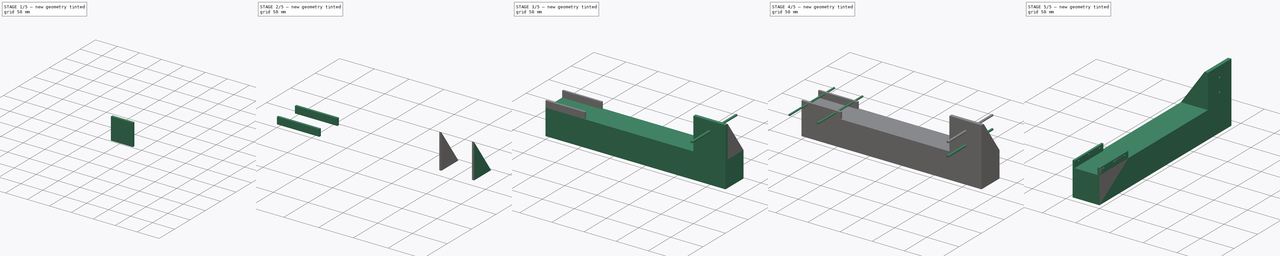
[diagram: build sequence overview — one tinted view per stage of 5, left to right]
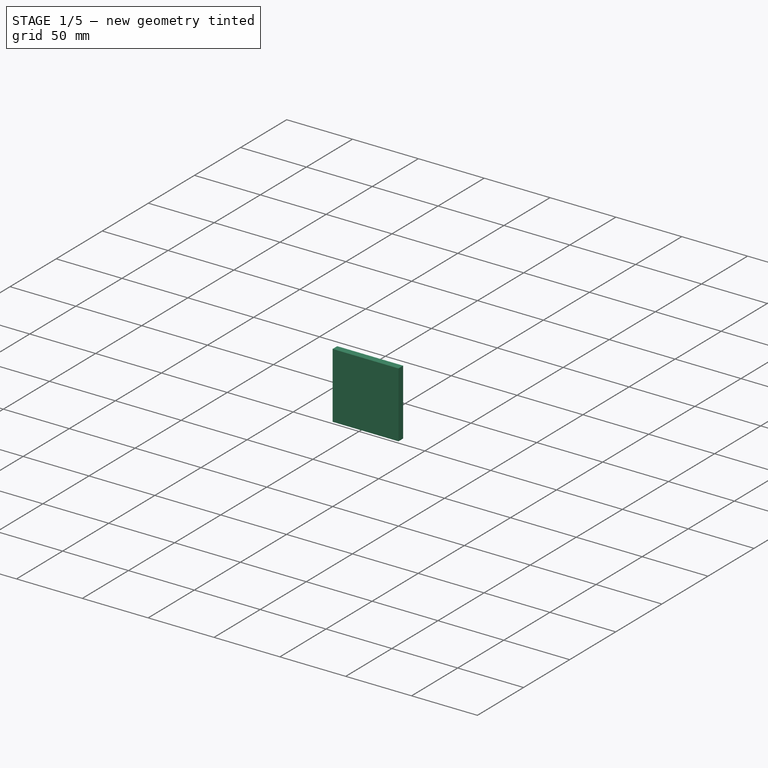
[diagram: stage 1 of 5 — iso view after this stage's code; geometry added in this stage tinted green]
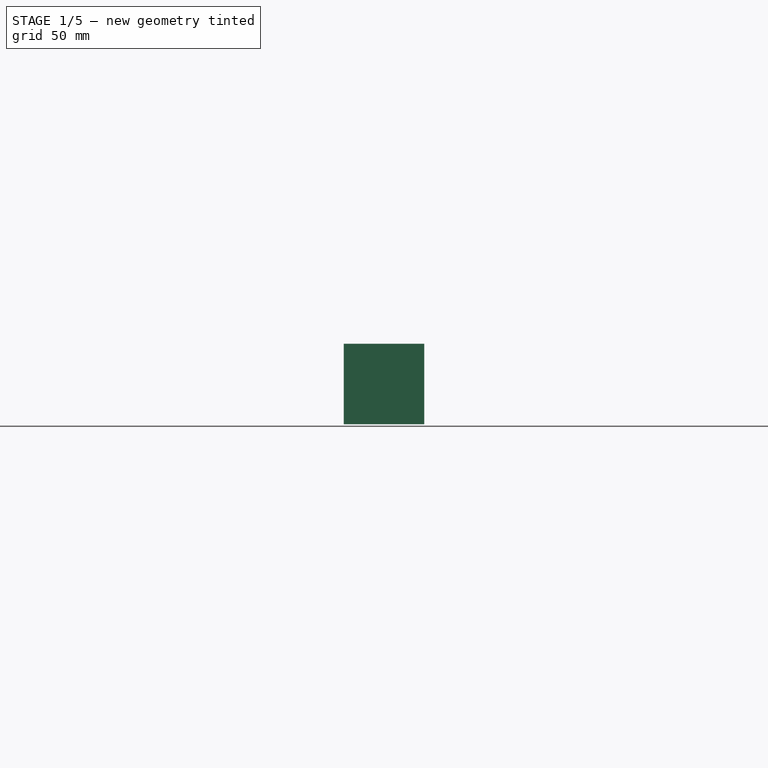
[diagram: stage 1 of 5 — front view after this stage's code; geometry added in this stage tinted green]
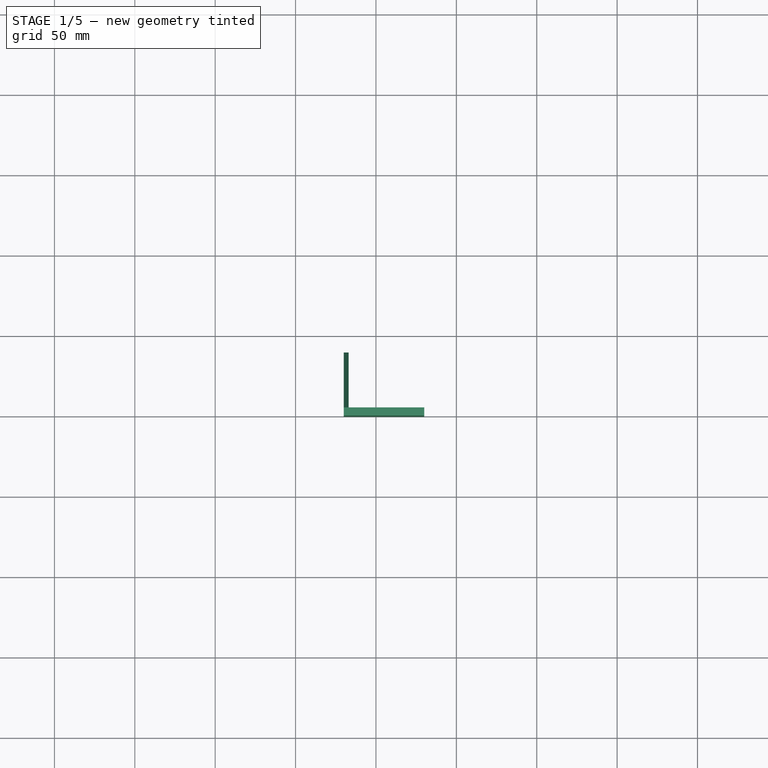
[diagram: stage 1 of 5 — top view after this stage's code; geometry added in this stage tinted green]
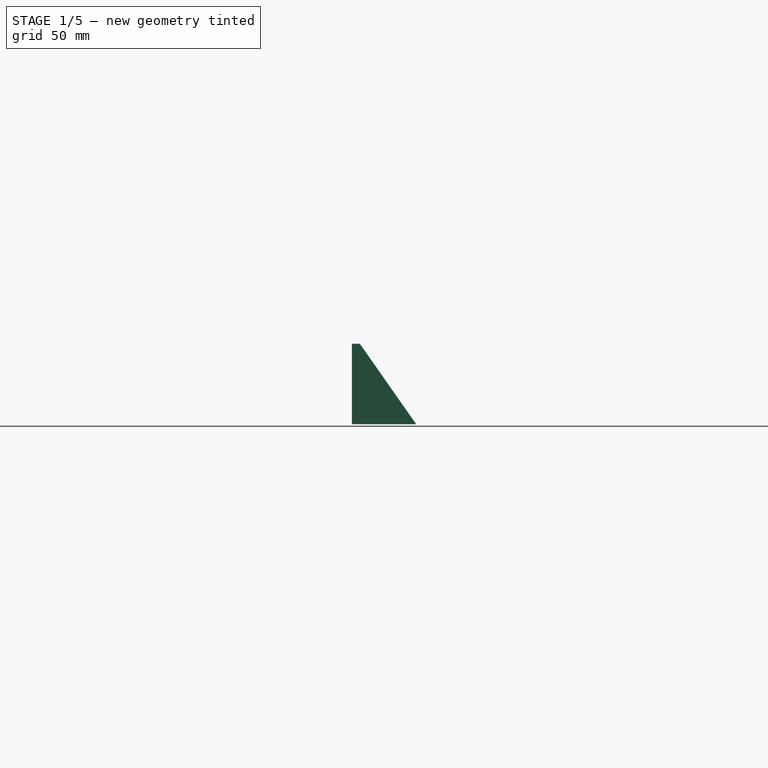
[diagram: stage 1 of 5 — right view after this stage's code; geometry added in this stage tinted green]
FCSTD DOCUMENT  (FreeCAD 0.15R4671 (Git))
Label: tendon_testbench
License: All rights reserved
LicenseURL: http://en.wikipedia.org/wiki/All_rights_reserved
objects: Part::Box×5, Part::Cylinder×5, Sketcher::SketchObject×2, Part::Extrusion×2, Part::MultiFuse×2, Part::Cut×1, Part::Feature×1
note: 18 computed .brp shape members not serialized (recipe doc carries the construction recipe); baked Part::Feature solids carry a one-line shape summary decoded from their .brp

FEATURE [Part::Box] Box002  label="Cube002"
  Height = 50
  Length = 50
  Placement = pos=(230,0,40) rot=(0,0,1;0rad)
  Width = 5
FEATURE [Part::Box] Box004  label="Cube004"
  Height = 50
  Length = 50
  Placement = pos=(230,0,40) rot=(0,0,1;0rad)
  Width = 5
FEATURE [Sketcher::SketchObject] Sketch001
  Placement = pos=(280,0,40) rot=(0.57735,0.57735,0.57735;2.0944rad)
  Support = -> Box004 [Face2]
  sketch-geometry (3):
    g0: LineSegment StartX=5 StartY=0 StartZ=0 EndX=40 EndY=0 EndZ=0
    g1: LineSegment StartX=5 StartY=0 StartZ=0 EndX=5 EndY=50 EndZ=0
    g2: LineSegment StartX=5 StartY=50 StartZ=0 EndX=40 EndY=0 EndZ=0
  constraints (9):
    c: PointOnObject(g0,g-1)
    c: Horizontal(g0)
    c: DistanceX(g0) = 40
    c: Coincident(g1,g0)
    c: Vertical(g1)
    c: DistanceY(g1) = 50
    c: Coincident(g2,g1)
    c: Coincident(g2,g0)
    c: DistanceX(g0) = 5
FEATURE [Part::Extrusion] Extrude001
  Base = -> Sketch001
  Dir = (-3,0,0)
  Placement = pos=(-47,0,0) rot=(0,0,1;0rad)
  Solid = true
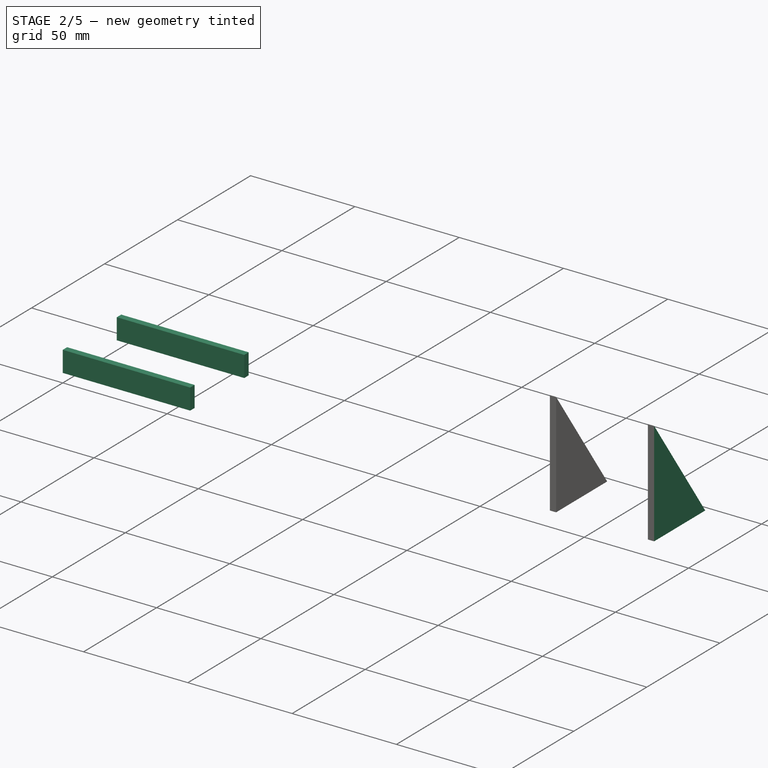
[diagram: stage 2 of 5 — iso view after this stage's code; geometry added in this stage tinted green]
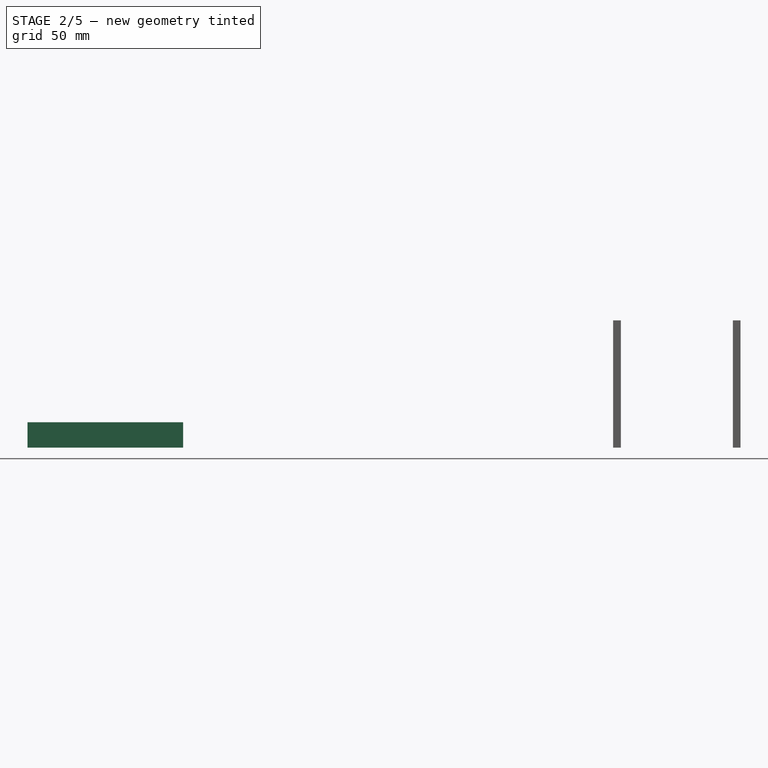
[diagram: stage 2 of 5 — front view after this stage's code; geometry added in this stage tinted green]
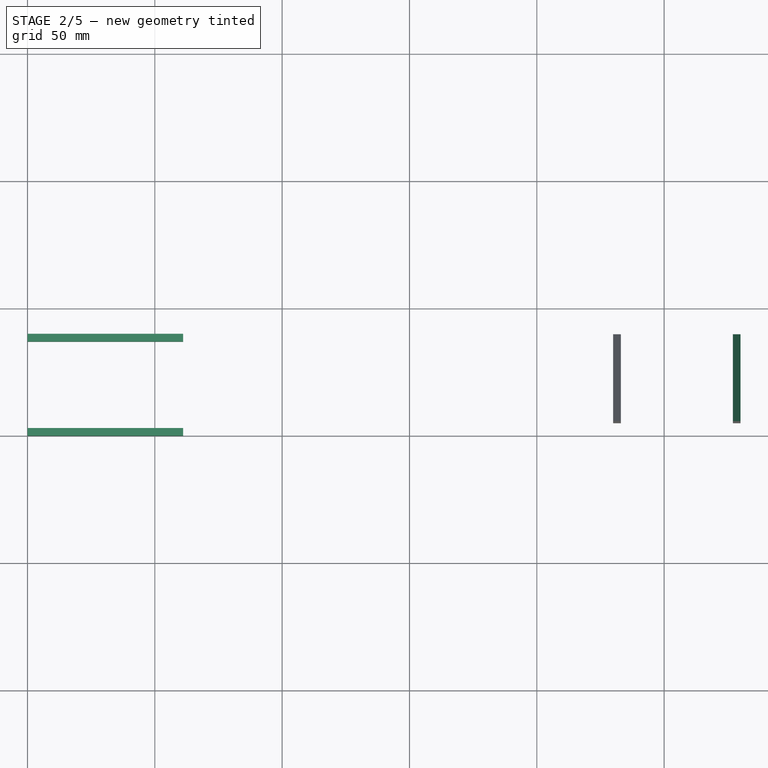
[diagram: stage 2 of 5 — top view after this stage's code; geometry added in this stage tinted green]
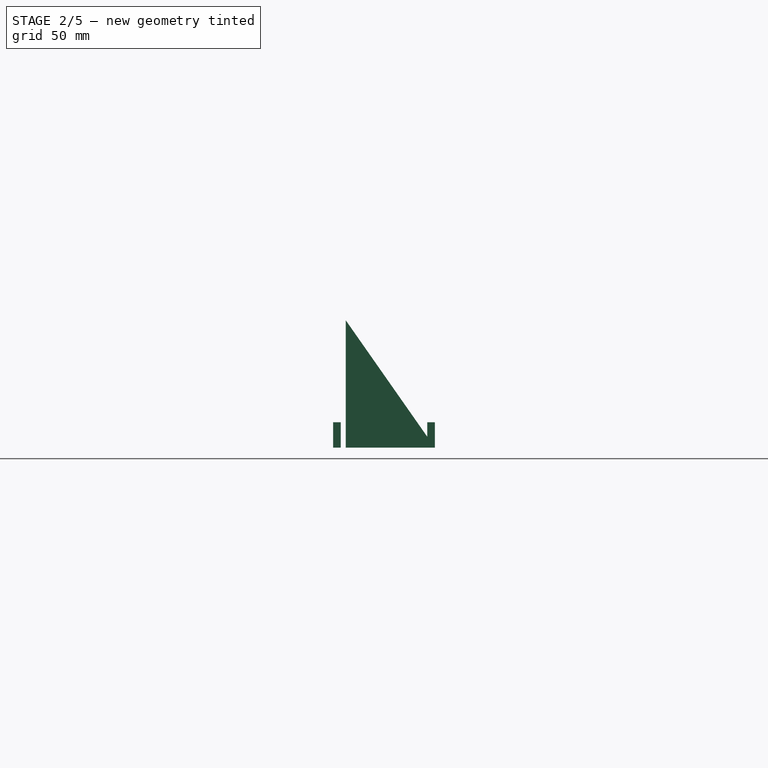
[diagram: stage 2 of 5 — right view after this stage's code; geometry added in this stage tinted green]
FEATURE [Part::Box] Box001  label="Cube001"
  Height = 10
  Length = 61.1
  Placement = pos=(0,0,40) rot=(0,0,1;0rad)
  Width = 3
FEATURE [Part::Box] Box003  label="Cube003"
  Height = 10
  Length = 61.1
  Placement = pos=(0,37,40) rot=(0,0,1;0rad)
  Width = 3
FEATURE [Part::Extrusion] Extrude
  Base = -> Sketch
  Dir = (-3,0,0)
  Solid = true
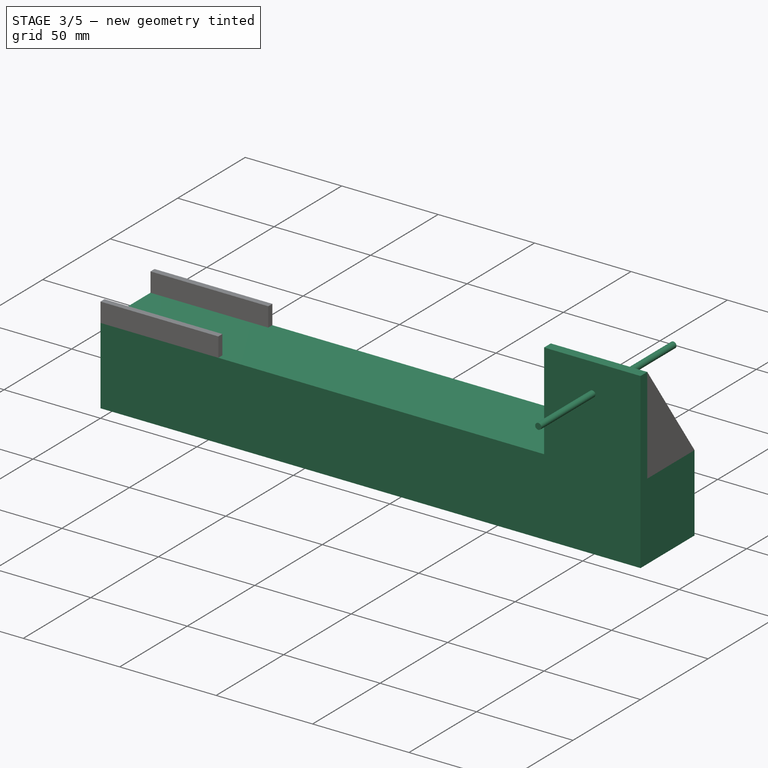
[diagram: stage 3 of 5 — iso view after this stage's code; geometry added in this stage tinted green]
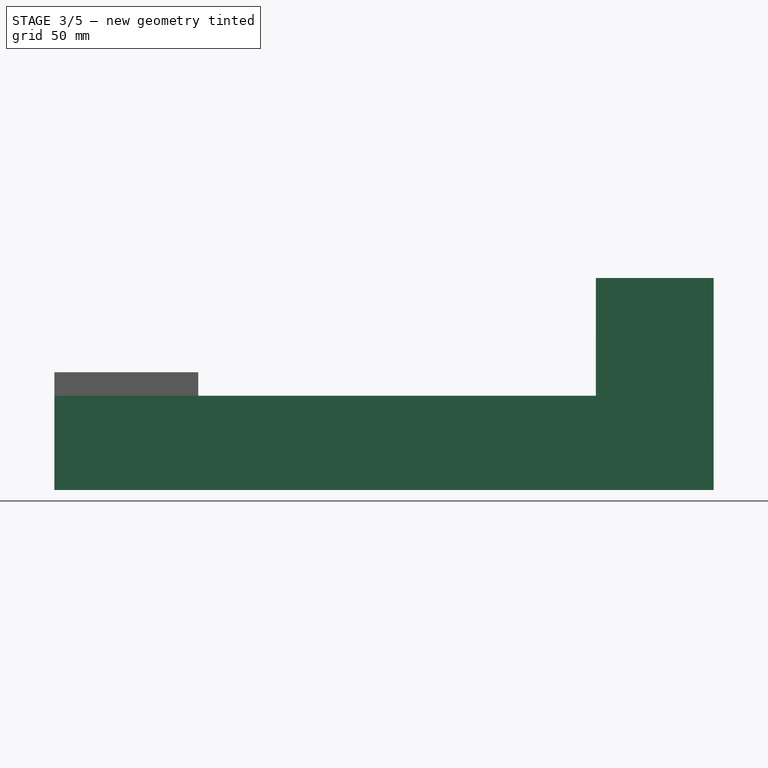
[diagram: stage 3 of 5 — front view after this stage's code; geometry added in this stage tinted green]
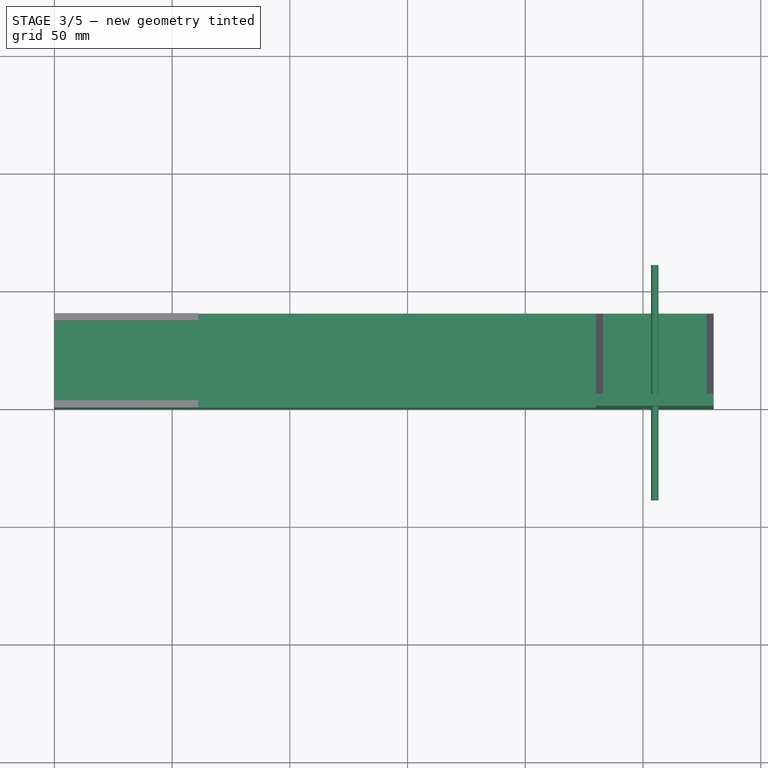
[diagram: stage 3 of 5 — top view after this stage's code; geometry added in this stage tinted green]
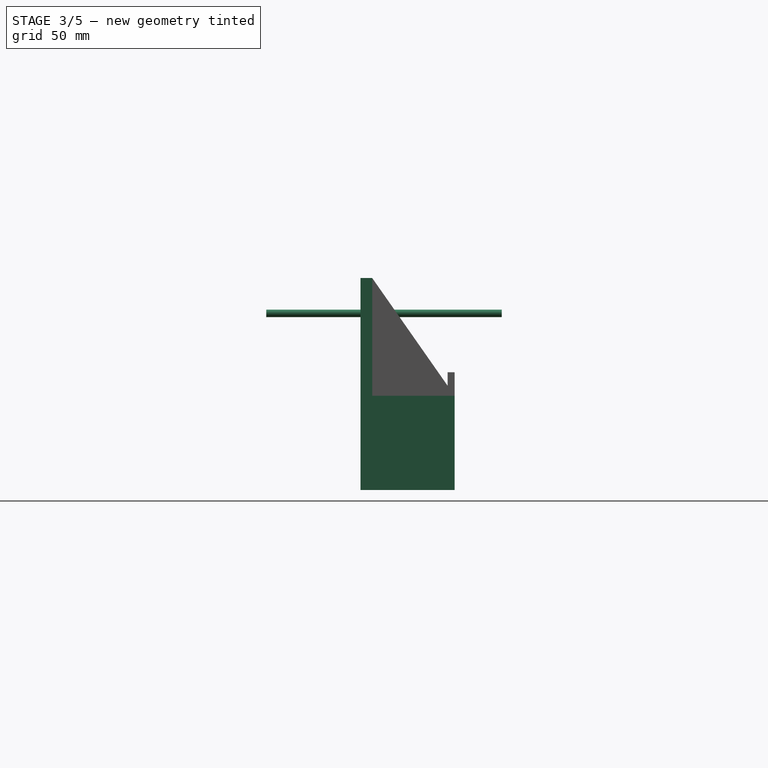
[diagram: stage 3 of 5 — right view after this stage's code; geometry added in this stage tinted green]
FEATURE [Part::Box] Box  label="Cube"
  Height = 40
  Length = 280
  Width = 40
FEATURE [Part::Cylinder] Cylinder004
  Angle = 360
  Height = 100
  Placement = pos=(255,60,75) rot=(1,0,0;1.5708rad)
  Radius = 1.6
FEATURE [Part::MultiFuse] Fusion001
  Shapes = -> [Box,Box001,Box002,Box003,Extrude,Box004,Extrude001]
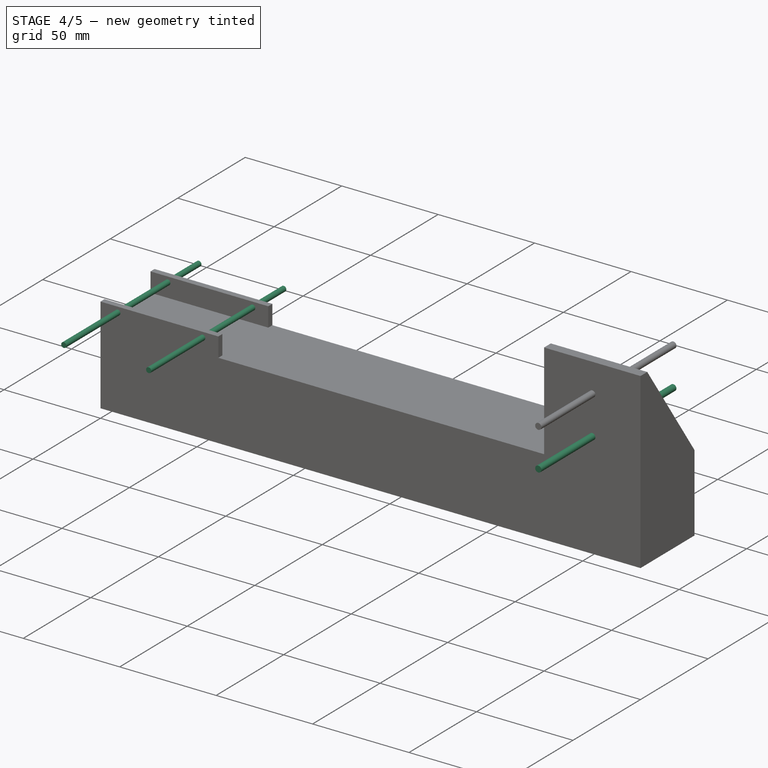
[diagram: stage 4 of 5 — iso view after this stage's code; geometry added in this stage tinted green]
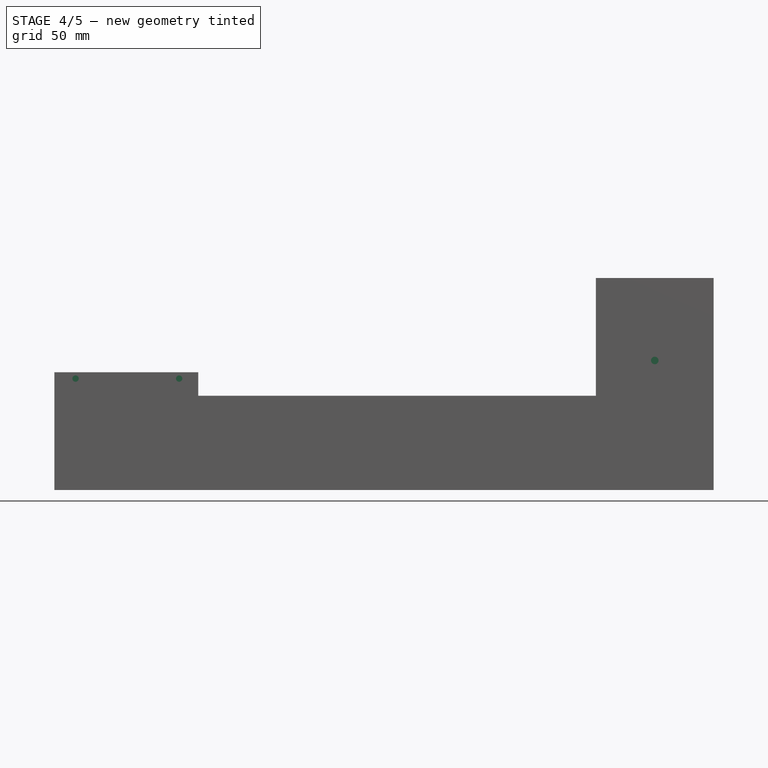
[diagram: stage 4 of 5 — front view after this stage's code; geometry added in this stage tinted green]
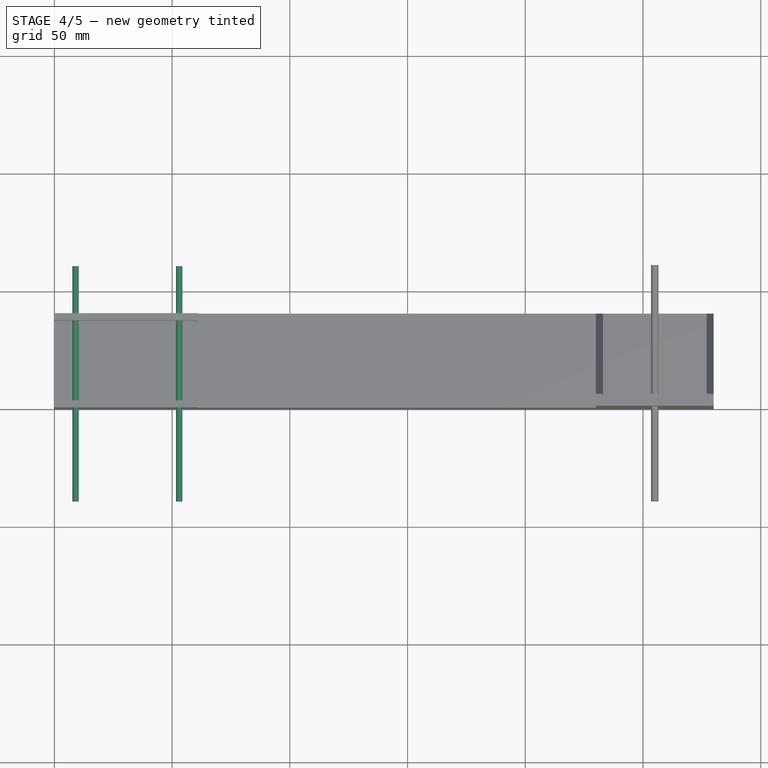
[diagram: stage 4 of 5 — top view after this stage's code; geometry added in this stage tinted green]
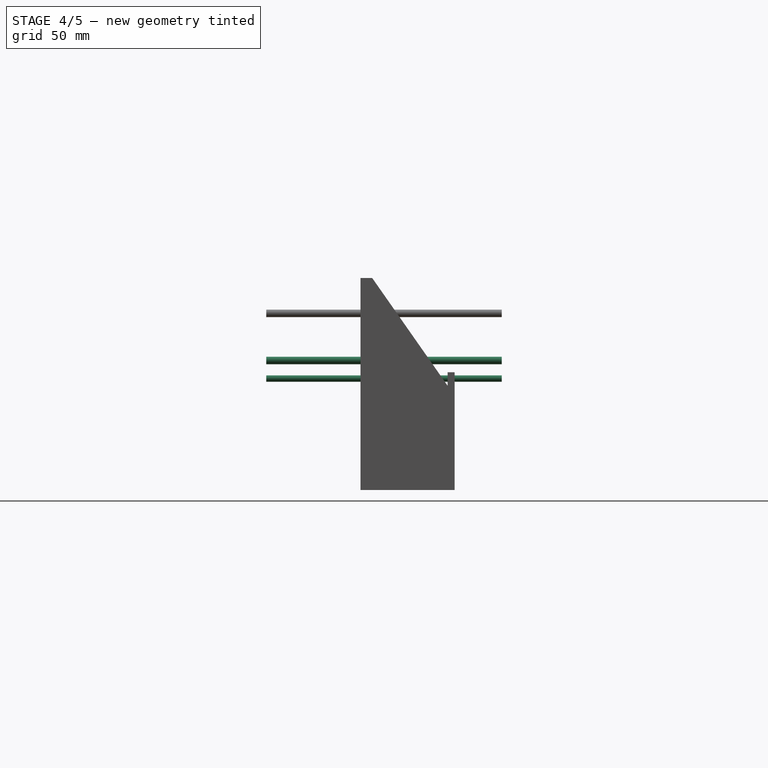
[diagram: stage 4 of 5 — right view after this stage's code; geometry added in this stage tinted green]
FEATURE [Sketcher::SketchObject] Sketch
  Placement = pos=(280,0,40) rot=(0.57735,0.57735,0.57735;2.0944rad)
  Support = -> Box002 [Face2]
  sketch-geometry (3):
    g0: LineSegment StartX=5 StartY=0 StartZ=0 EndX=40 EndY=0 EndZ=0
    g1: LineSegment StartX=5 StartY=0 StartZ=0 EndX=5 EndY=50 EndZ=0
    g2: LineSegment StartX=5 StartY=50 StartZ=0 EndX=40 EndY=0 EndZ=0
  constraints (9):
    c: PointOnObject(g0,g-1)
    c: Horizontal(g0)
    c: DistanceX(g0) = 40
    c: Coincident(g1,g0)
    c: Vertical(g1)
    c: DistanceY(g1) = 50
    c: Coincident(g2,g1)
    c: Coincident(g2,g0)
    c: DistanceX(g0) = 5
FEATURE [Part::Cylinder] Cylinder001
  Angle = 360
  Height = 100
  Placement = pos=(9,60,47.3) rot=(1,0,0;1.5708rad)
  Radius = 1.35
FEATURE [Part::Cylinder] Cylinder002
  Angle = 360
  Height = 100
  Placement = pos=(53,60,47.3) rot=(1,0,0;1.5708rad)
  Radius = 1.35
FEATURE [Part::Cylinder] Cylinder003
  Angle = 360
  Height = 100
  Placement = pos=(255,60,55) rot=(1,0,0;1.5708rad)
  Radius = 1.6
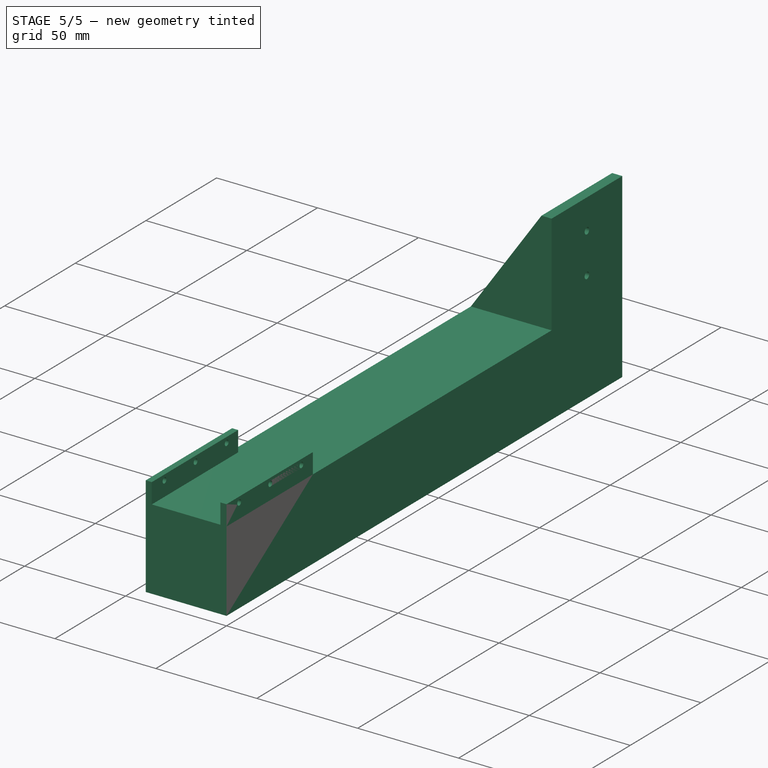
[diagram: stage 5 of 5 — iso view after this stage's code; geometry added in this stage tinted green]
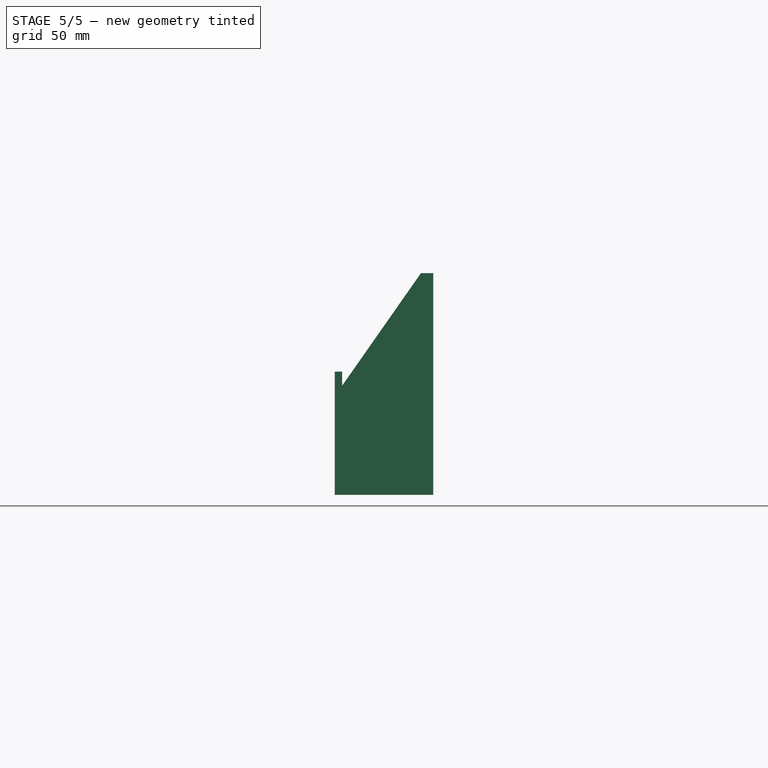
[diagram: stage 5 of 5 — front view after this stage's code; geometry added in this stage tinted green]
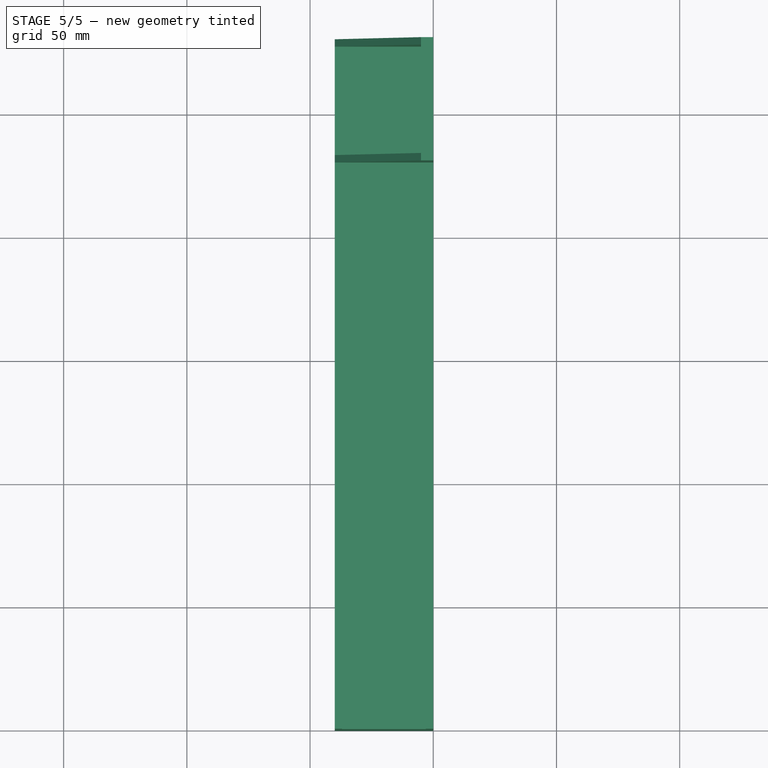
[diagram: stage 5 of 5 — top view after this stage's code; geometry added in this stage tinted green]
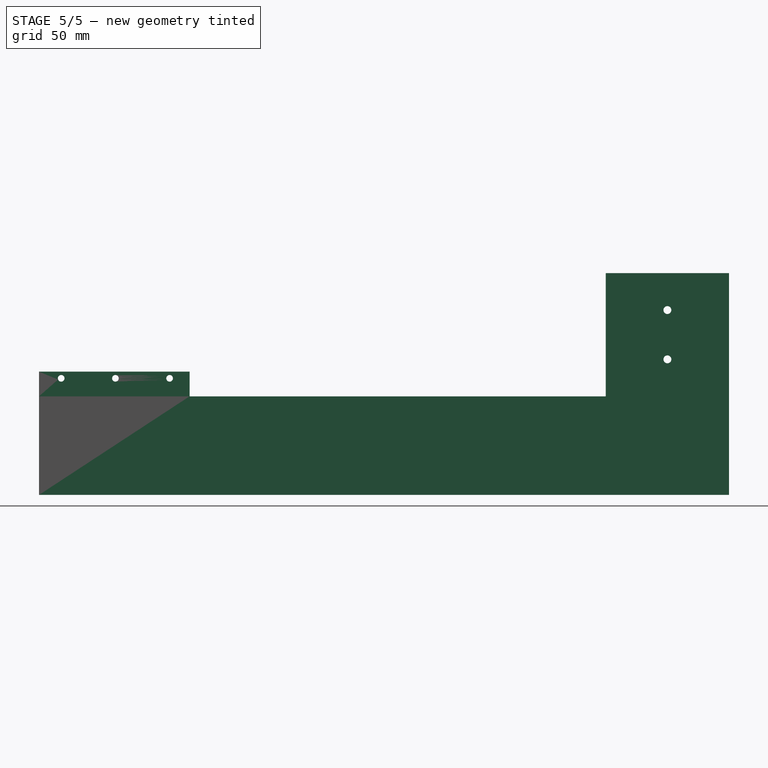
[diagram: stage 5 of 5 — right view after this stage's code; geometry added in this stage tinted green]
FEATURE [Part::Cylinder] Cylinder
  Angle = 360
  Height = 100
  Placement = pos=(31,60,47.3) rot=(1,0,0;1.5708rad)
  Radius = 1.35
FEATURE [Part::MultiFuse] Fusion
  Shapes = -> [Cylinder004,Cylinder003,Cylinder001,Cylinder002,Cylinder]
FEATURE [Part::Cut] Cut
  Base = -> Fusion001
  Placement = pos=(0,0,0) rot=(0,0,1;1.5708rad)
  Tool = -> Fusion
FEATURE [Part::Feature] Part__Feature  label="DC05_M01_DUMMY"
  Placement = pos=(-20,49,64.8) rot=(0,1,0;1.5708rad)
  shape: bbox 50 x 62.1 x 40.2 mm, 366 faces (baked)
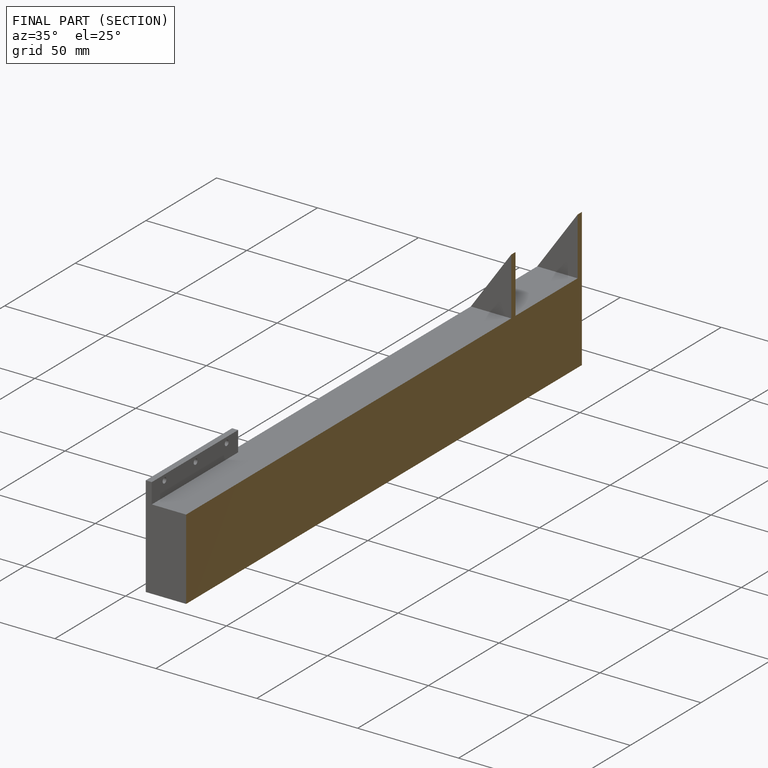
[diagram: finished part — half-section view (interior)]
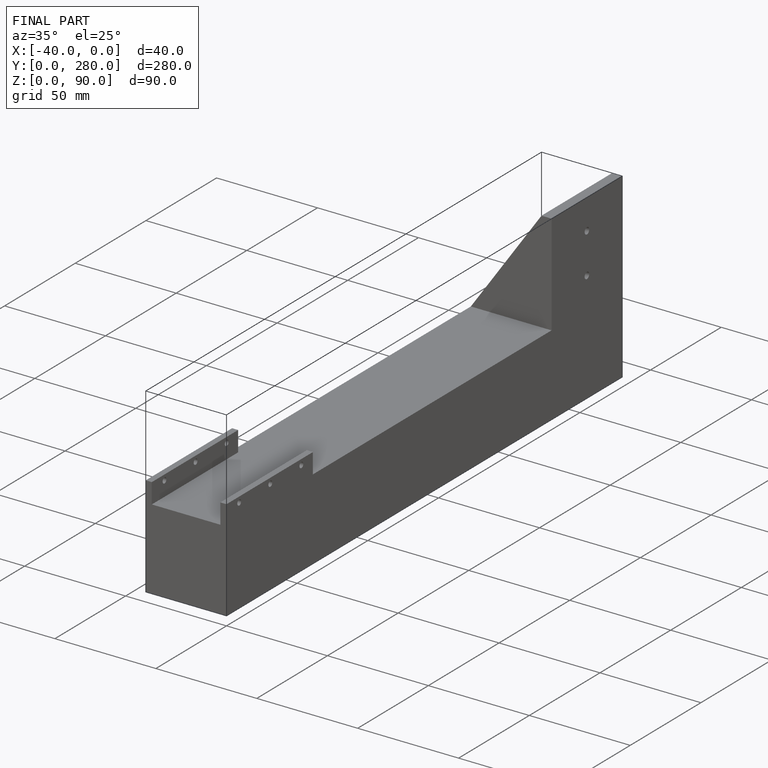
[diagram: finished part — iso view with bounding-box wireframe]
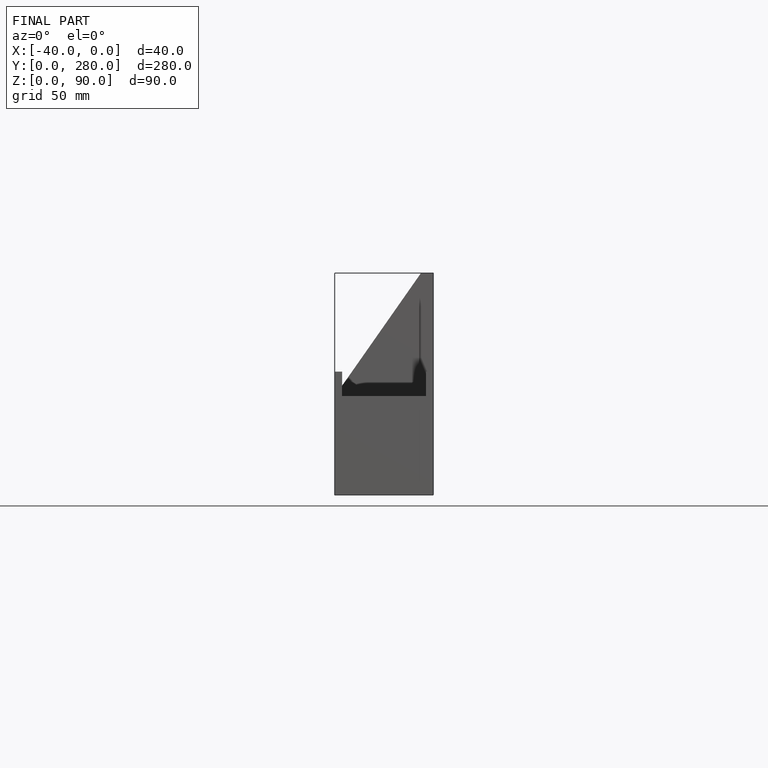
[diagram: finished part — front view with bounding-box wireframe]
